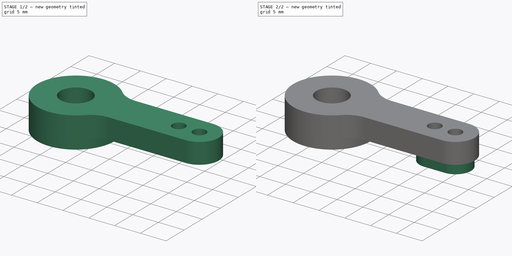
[diagram: build sequence overview — one tinted view per stage of 2, left to right]
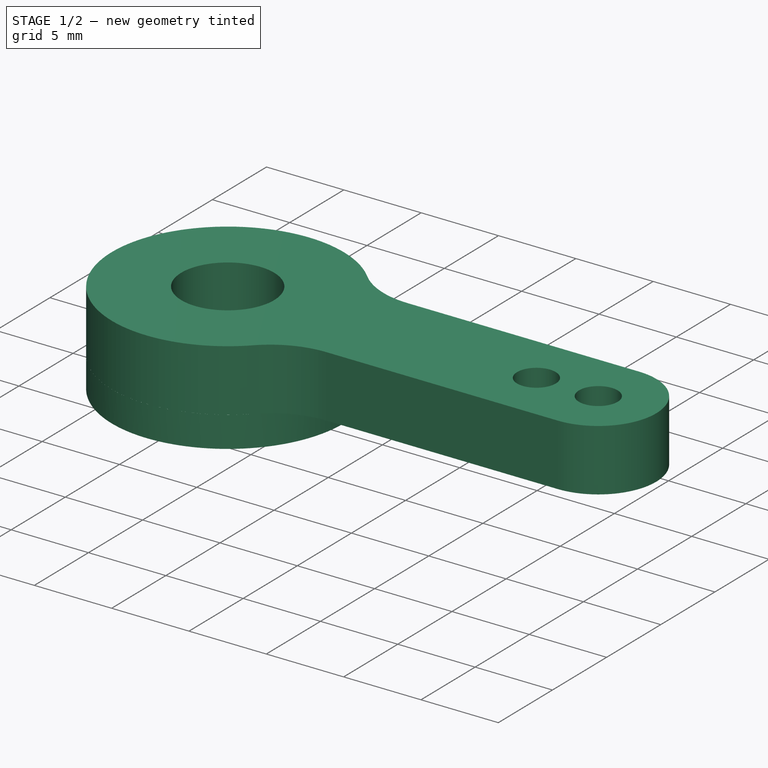
[diagram: stage 1 of 2 — iso view after this stage's code; geometry added in this stage tinted green]
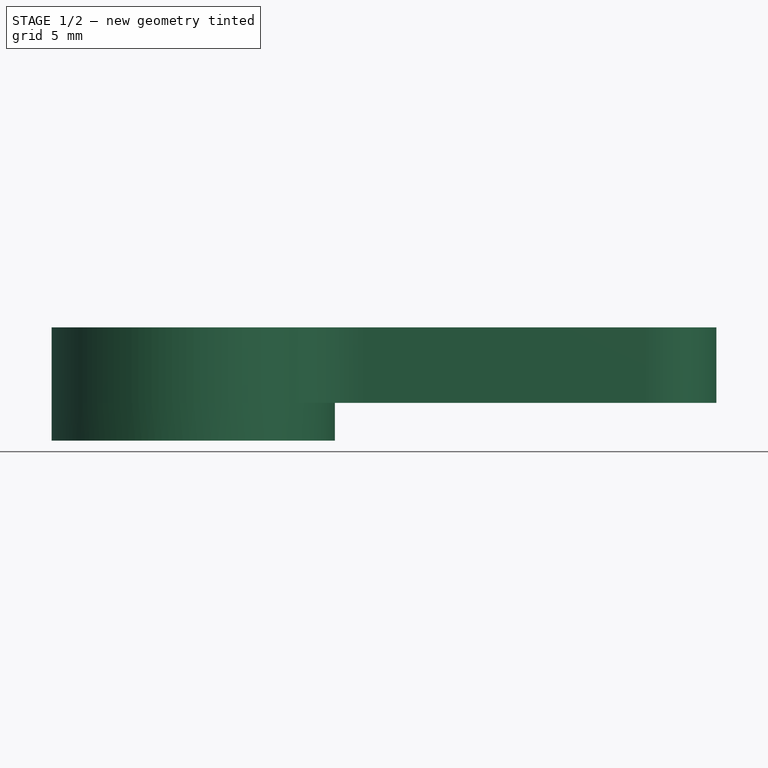
[diagram: stage 1 of 2 — front view after this stage's code; geometry added in this stage tinted green]
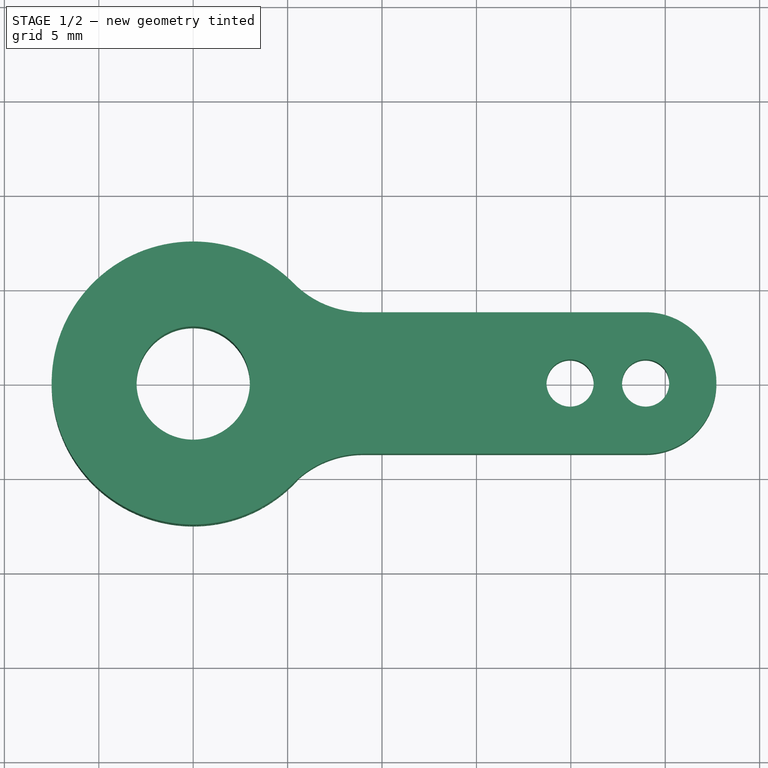
[diagram: stage 1 of 2 — top view after this stage's code; geometry added in this stage tinted green]
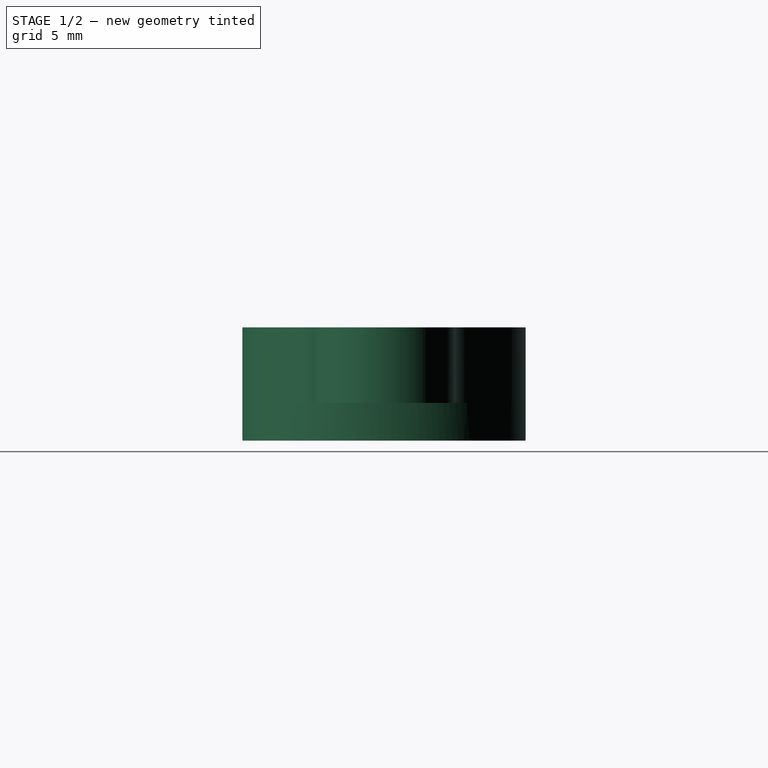
[diagram: stage 1 of 2 — right view after this stage's code; geometry added in this stage tinted green]
FCSTD DOCUMENT  (FreeCAD 0.19R24276 (Git))
Label: Rocker
License: All rights reserved
LicenseURL: http://en.wikipedia.org/wiki/All_rights_reserved
objects: Sketcher::SketchObject×3, PartDesign::Pad×3, PartDesign::Body×1
note: 10 computed .brp shape members not serialized (recipe doc carries the construction recipe); baked Part::Feature solids carry a one-line shape summary decoded from their .brp

FEATURE [Sketcher::SketchObject] Sketch
  FullyConstrained = false
  MapMode = 5
  Support = -> [XY_Plane]
  sketch-geometry (18):
    g0: LineSegment StartX=9 StartY=3.75032 StartZ=0 EndX=9 EndY=-3.74968 EndZ=0
    g1: LineSegment StartX=0 StartY=0 StartZ=0 EndX=10.25 EndY=0 EndZ=0
    g2: LineSegment StartX=9 StartY=3.75032 StartZ=0 EndX=23.9613 EndY=3.75032 EndZ=0
    g3: LineSegment StartX=9 StartY=-3.74968 StartZ=0 EndX=23.9613 EndY=-3.74968 EndZ=0
    g4: LineSegment StartX=23.9613 StartY=0.000318307 StartZ=0 EndX=23.9613 EndY=-3.75 EndZ=0
    g5: LineSegment StartX=23.9613 StartY=0.000318307 StartZ=0 EndX=23.9613 EndY=3.75032 EndZ=0
    g6: ArcOfCircle CenterX=23.9613 CenterY=0.000318307 CenterZ=0 NormalX=0 NormalY=0 NormalZ=1 AngleXU=0 Radius=3.75 StartAngle=4.71239 EndAngle=7.85398
    g7: LineSegment StartX=9 StartY=3.75032 StartZ=0 EndX=9 EndY=8.93032 EndZ=0
    g8: LineSegment StartX=9 StartY=-3.74968 StartZ=0 EndX=9 EndY=-8.92968 EndZ=0
    g9: ArcOfCircle CenterX=9 CenterY=-8.92968 CenterZ=0 NormalX=0 NormalY=0 NormalZ=1 AngleXU=0 Radius=5.18 StartAngle=1.5708 EndAngle=2.34914
    g10: LineSegment StartX=9 StartY=-8.92968 StartZ=0 EndX=5.36312 EndY=-5.24112 EndZ=0
    g11: ArcOfCircle CenterX=0 CenterY=0 CenterZ=0 NormalX=0 NormalY=0 NormalZ=1 AngleXU=0 Radius=7.49882 StartAngle=0.778573 EndAngle=5.50929
    g12: LineSegment StartX=9 StartY=8.93032 StartZ=0 EndX=5.33854 EndY=5.26616 EndZ=0
    g13: ArcOfCircle CenterX=9 CenterY=8.93032 CenterZ=0 NormalX=0 NormalY=0 NormalZ=1 AngleXU=0 Radius=5.18 StartAngle=3.92736 EndAngle=4.71239
    g14: LineSegment StartX=23.9613 StartY=3.75032 StartZ=0 EndX=23.9613 EndY=-3.74968 EndZ=0
    g15: Circle CenterX=0 CenterY=0 CenterZ=0 NormalX=0 NormalY=0 NormalZ=1 AngleXU=0 Radius=3
    g16: Circle CenterX=23.9613 CenterY=0.000318307 CenterZ=0 NormalX=0 NormalY=0 NormalZ=1 AngleXU=0 Radius=1.25
    g17: Circle CenterX=19.9613 CenterY=0 CenterZ=0 NormalX=0 NormalY=0 NormalZ=1 AngleXU=0 Radius=1.25
  constraints (47):
    c: Vertical(g0)
    c: PointOnObject(g1,g-1)
    c: Vertical(g4)
    c: PointOnObject(g5,g2)
    c: Vertical(g5)
    c: Coincident(g6,g4)
    c: Coincident(g6,g3)
    c: Coincident(g6,g2)
    c: Coincident(g7,g0)
    c: Vertical(g7)
    c: DistanceY(g7,g7) = 5.18
    c: Coincident(g8,g0)
    c: DistanceY(g8,g8) = 5.18
    c: Coincident(g9,g8)
    c: Coincident(g10,g8)
    c: PointOnObject(g10,g9)
    c: Coincident(g11,g-1)
    c: PointOnObject(g10,g11)
    c: Coincident(g0,g2)
    c: Coincident(g12,g7)
    c: PointOnObject(g12,g11)
    c: Coincident(g13,g7)
    c: PointOnObject(g12,g13)
    c: Coincident(g13,g7)
    c: Coincident(g9,g0)
    c: Coincident(g11,g9)
    c: Coincident(g11,g13)
    c: Coincident(g3,g9)
    c: DistanceX(g11,g9) = 9
    c: Vertical(g9,g13)
    c: Horizontal(g2)
    c: Horizontal(g3)
    c: DistanceY(g0,g0) = 7.5
    c: Coincident(g12,g11)
    c: Coincident(g10,g9)
    c: Coincident(g14,g2)
    c: Coincident(g14,g3)
    c: Vertical(g14)
    c: Coincident(g15,g11)
    c: Diameter(g15) = 6
    c: Coincident(g16,g6)
    c: Diameter(g16) = 2.5
    c: PointOnObject(g17,g-1)
    c: Equal(g17,g16)
    c: DistanceX(g17,g6) = 4
    c: Coincident(g6,g5)
    c: Vertical(g6,g3)
FEATURE [PartDesign::Pad] Pad
  Direction = (1,1,1)
  Length = 4
  Length2 = 100
  Profile = -> Sketch
  Type = 0
FEATURE [Sketcher::SketchObject] Sketch001
  FullyConstrained = true
  MapMode = 5
  Placement = pos=(0,0,0) rot=(1,0,0;3.14159rad)
  Support = -> [Pad]
  sketch-geometry (2):
    g0: Circle CenterX=0 CenterY=0 CenterZ=0 NormalX=0 NormalY=0 NormalZ=1 AngleXU=0 Radius=7.5
    g1: Circle CenterX=0 CenterY=0 CenterZ=0 NormalX=0 NormalY=0 NormalZ=1 AngleXU=0 Radius=3
  constraints (4):
    c: Coincident(g0,g-1)
    c: Diameter(g0) = 15
    c: Coincident(g1,g0)
    c: Diameter(g1) = 6
FEATURE [PartDesign::Pad] Pad001
  BaseFeature = -> Pad
  Direction = (1,1,1)
  Length = 2
  Length2 = 100
  Profile = -> Sketch001
  Type = 0
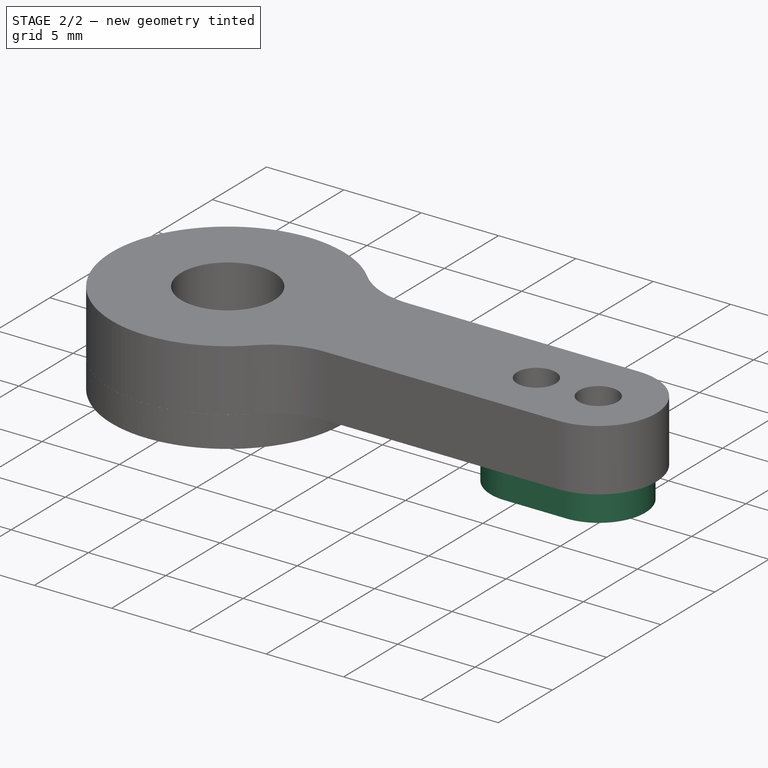
[diagram: stage 2 of 2 — iso view after this stage's code; geometry added in this stage tinted green]
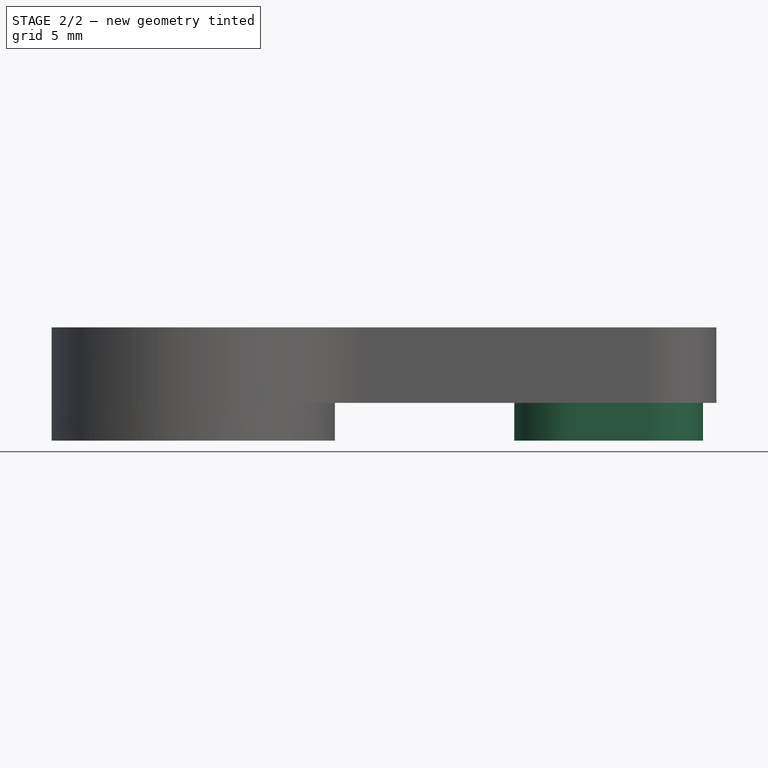
[diagram: stage 2 of 2 — front view after this stage's code; geometry added in this stage tinted green]
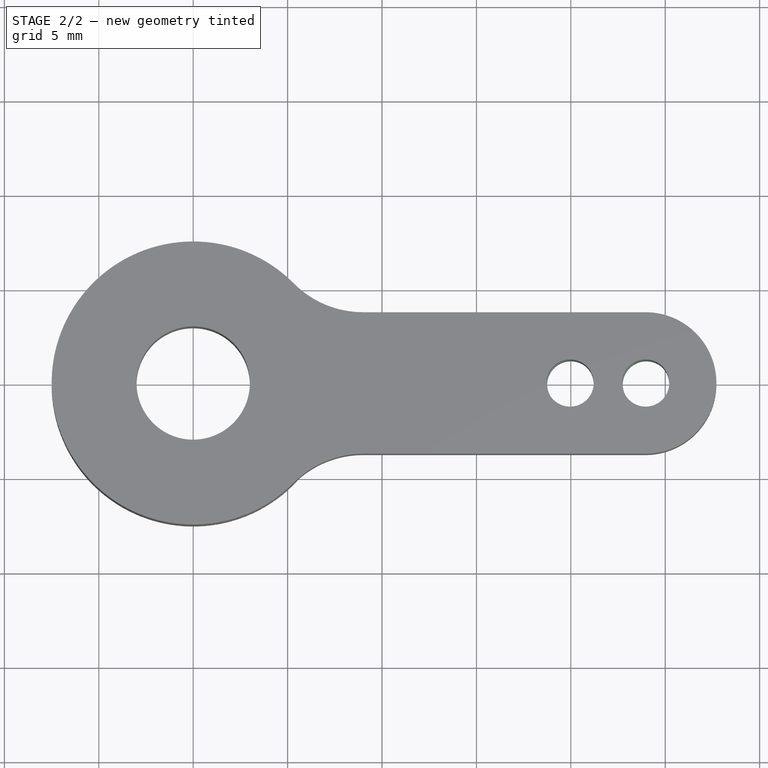
[diagram: stage 2 of 2 — top view after this stage's code; geometry added in this stage tinted green]
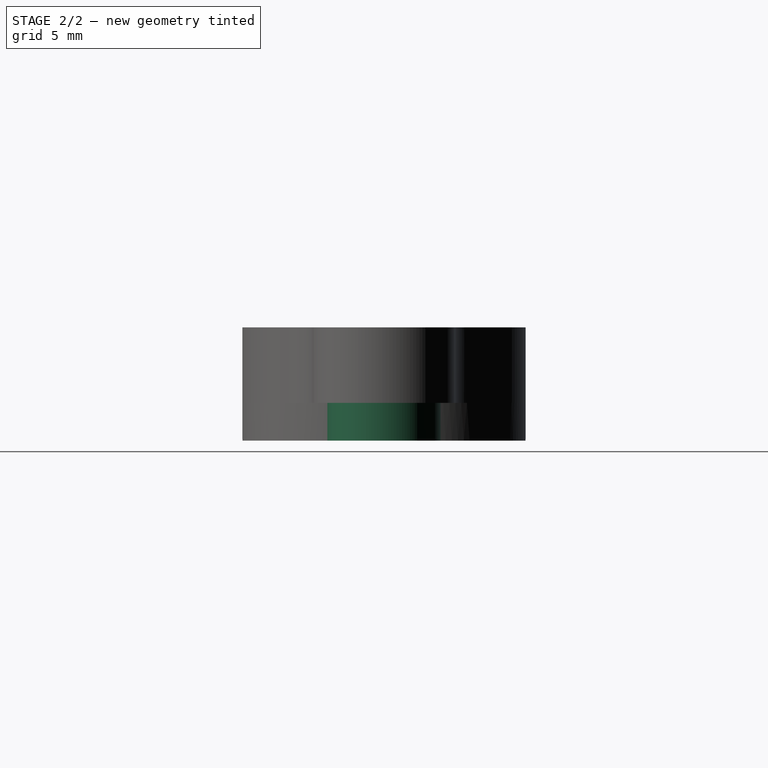
[diagram: stage 2 of 2 — right view after this stage's code; geometry added in this stage tinted green]
FEATURE [Sketcher::SketchObject] Sketch002
  FullyConstrained = true
  MapMode = 5
  Placement = pos=(0,0,0) rot=(1,0,0;3.14159rad)
  Support = -> [Pad001]
  sketch-geometry (7):
    g0: LineSegment StartX=0 StartY=0 StartZ=0 EndX=24 EndY=0 EndZ=0
    g1: ArcOfCircle CenterX=20 CenterY=-6.8e-15 CenterZ=0 NormalX=0 NormalY=0 NormalZ=1 AngleXU=0 Radius=3 StartAngle=1.5708 EndAngle=4.71239
    g2: ArcOfCircle CenterX=24 CenterY=0 CenterZ=0 NormalX=0 NormalY=0 NormalZ=1 AngleXU=0 Radius=3 StartAngle=4.71239 EndAngle=7.85398
    g3: LineSegment StartX=20 StartY=-3 StartZ=0 EndX=24 EndY=-3 EndZ=0
    g4: LineSegment StartX=20 StartY=3 StartZ=0 EndX=24 EndY=3 EndZ=0
    g5: Circle CenterX=20 CenterY=-6.8e-15 CenterZ=0 NormalX=0 NormalY=0 NormalZ=1 AngleXU=0 Radius=1.25
    g6: Circle CenterX=24 CenterY=0 CenterZ=0 NormalX=0 NormalY=0 NormalZ=1 AngleXU=0 Radius=1.25
  constraints (16):
    c: Coincident(g0,g-1)
    c: PointOnObject(g0,g-1)
    c: DistanceX(g0,g0) = 24
    c: Tangent(g1,g4) = 1.5708
    c: Tangent(g1,g3) = -1.5708
    c: Tangent(g3,g2) = -1.5708
    c: Tangent(g4,g2) = 1.5708
    c: Horizontal(g3)
    c: Equal(g1,g2)
    c: Diameter(g2) = 6
    c: DistanceX(g1,g0) = 4
    c: Coincident(g2,g0)
    c: Coincident(g5,g1)
    c: Coincident(g6,g2)
    c: Equal(g6,g5)
    c: Diameter(g6) = 2.5
FEATURE [PartDesign::Pad] Pad002
  BaseFeature = -> Pad001
  Direction = (1,1,1)
  Length = 2
  Length2 = 100
  Profile = -> Sketch002
  Type = 0
FEATURE [PartDesign::Body] Body
  Group = -> [Sketch,Pad,Sketch001,Pad001,Sketch002,Pad002]
  Origin = -> Origin
  Tip = -> Pad002
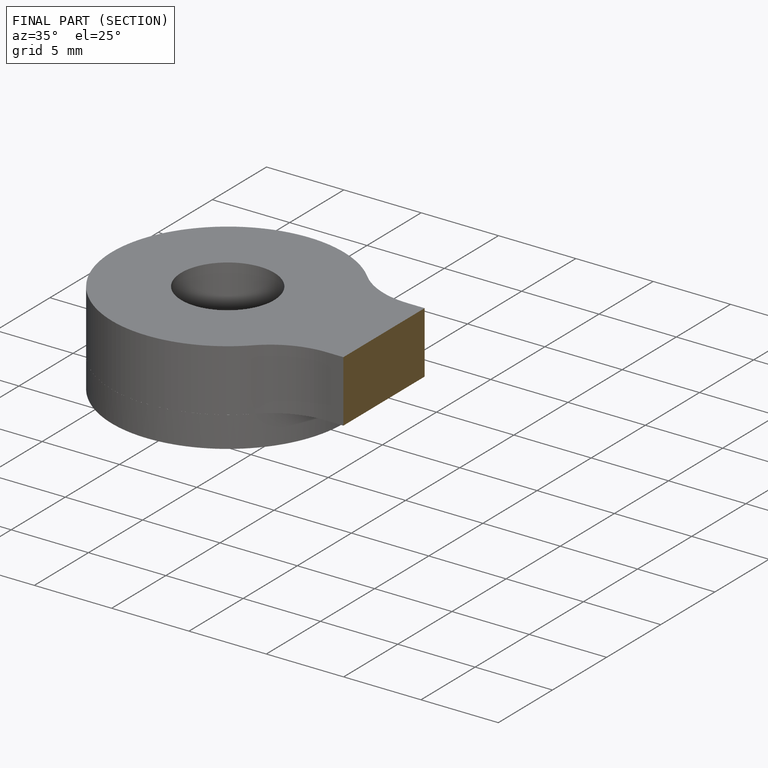
[diagram: finished part — half-section view (interior)]
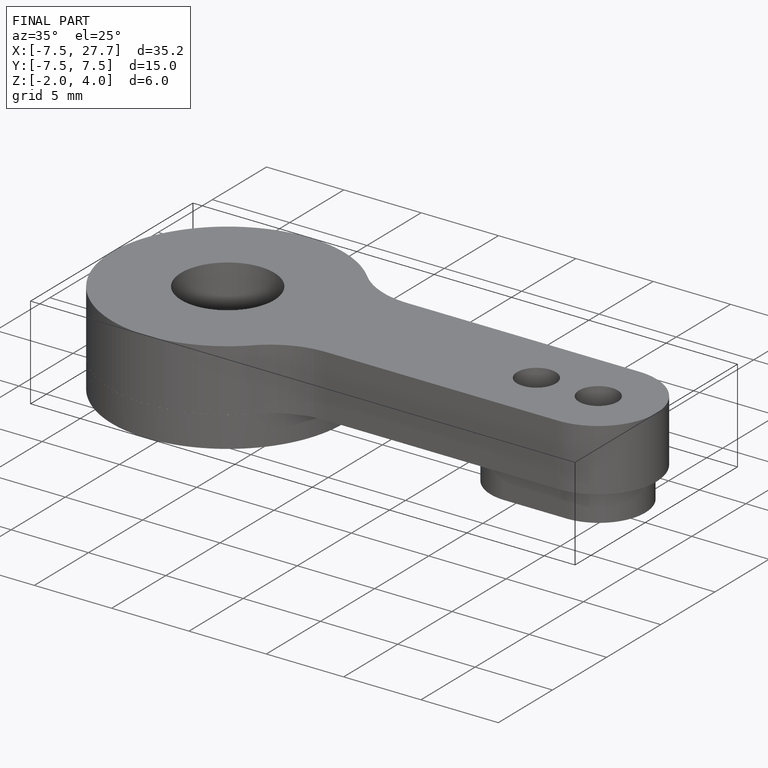
[diagram: finished part — iso view with bounding-box wireframe]
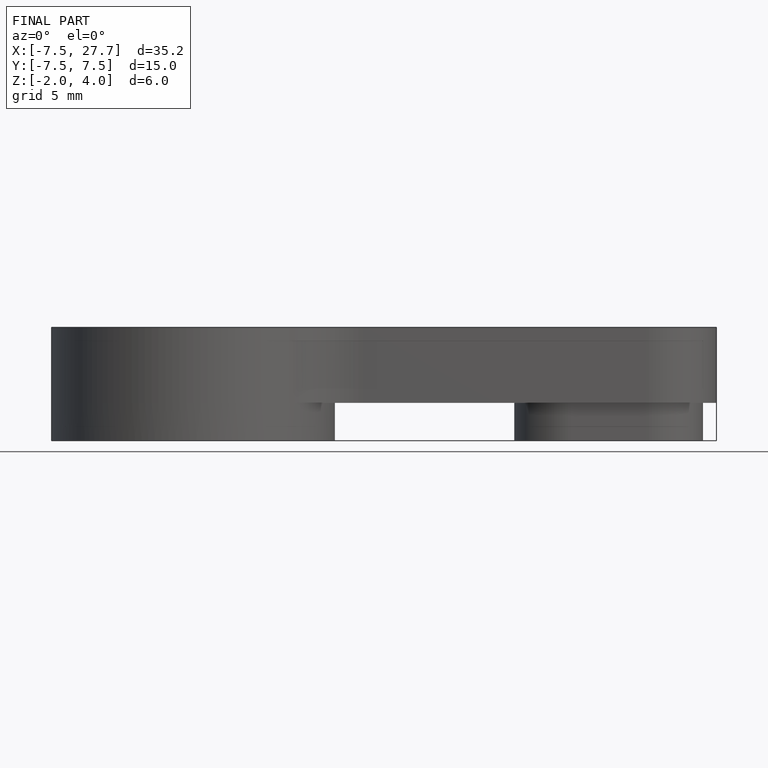
[diagram: finished part — front view with bounding-box wireframe]
